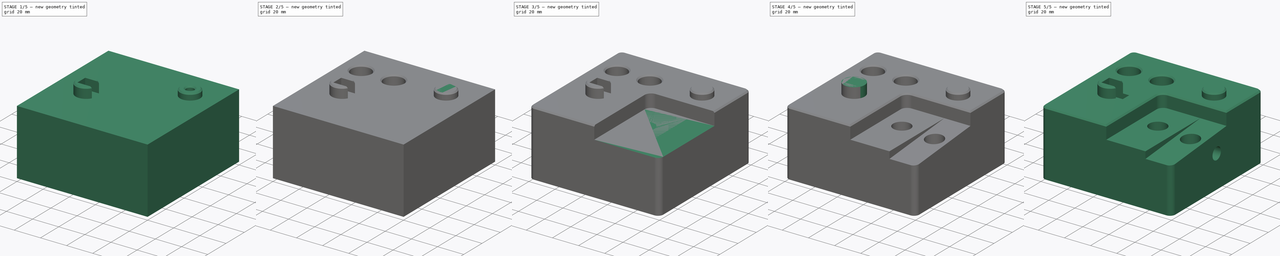
[diagram: build sequence overview — one tinted view per stage of 5, left to right]
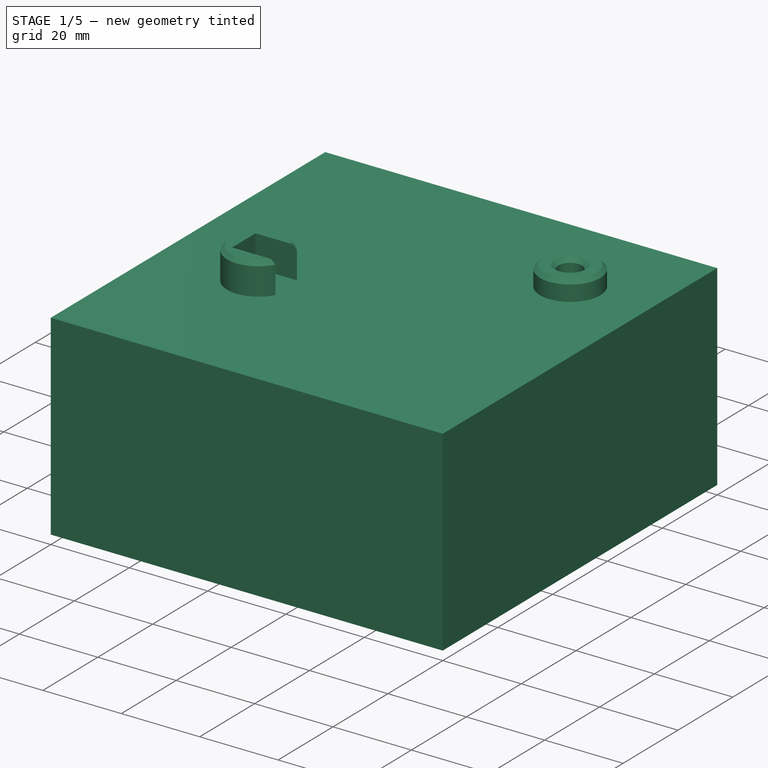
[diagram: stage 1 of 5 — iso view after this stage's code; geometry added in this stage tinted green]
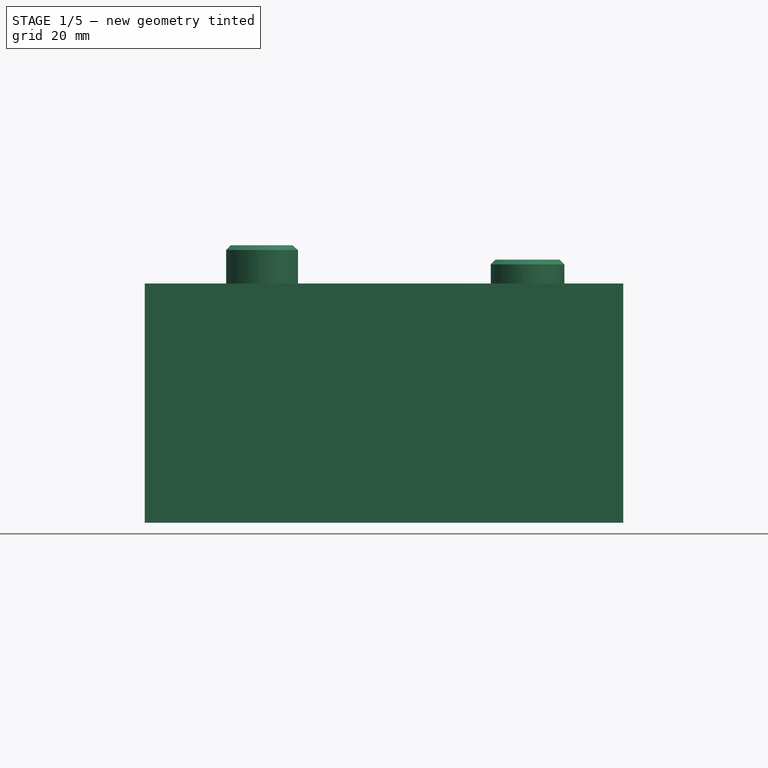
[diagram: stage 1 of 5 — front view after this stage's code; geometry added in this stage tinted green]
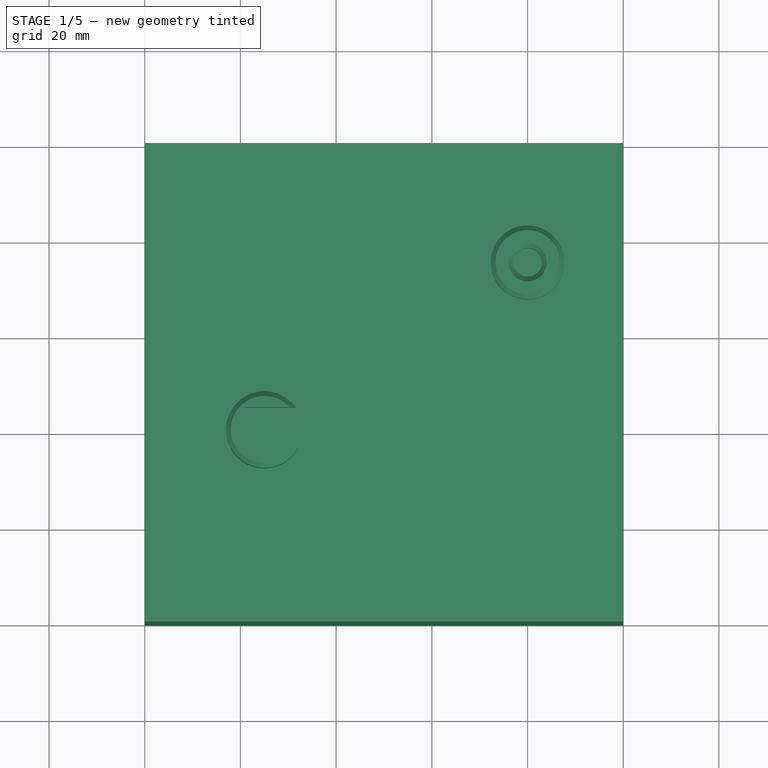
[diagram: stage 1 of 5 — top view after this stage's code; geometry added in this stage tinted green]
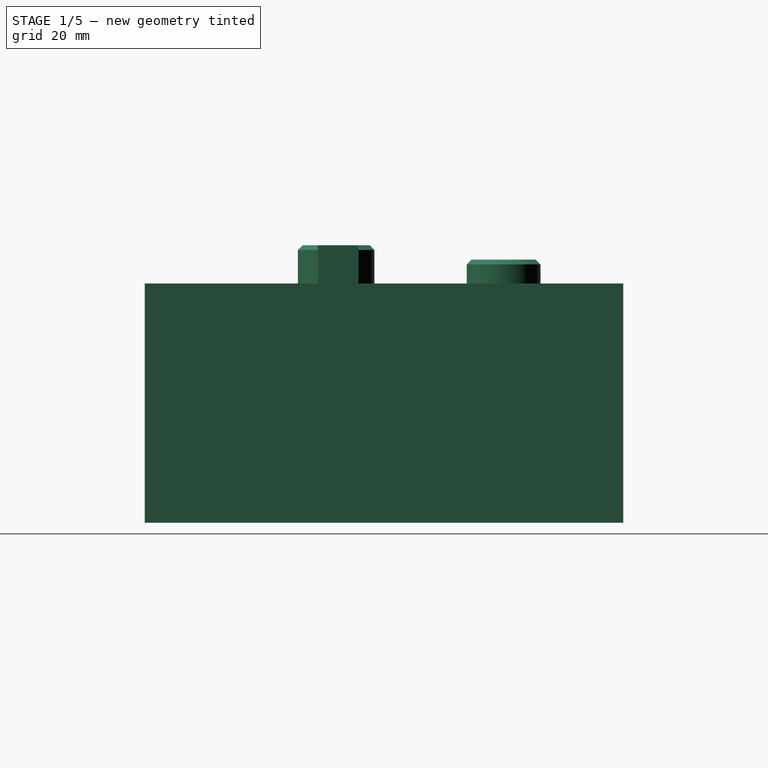
[diagram: stage 1 of 5 — right view after this stage's code; geometry added in this stage tinted green]
FCSTD DOCUMENT  (FreeCAD 0.15R4241 (Git))
Label: hole_puzzle
License: CC-BY 3.0
LicenseURL: http://creativecommons.org/licenses/by/3.0/
objects: Part::Feature×25, Sketcher::SketchObject×12, PartDesign::Pocket×9, Part::Part2DObjectPython×8, PartDesign::Chamfer×6, PartDesign::Pad×3, PartDesign::Fillet×2
note: 77 computed .brp shape members not serialized (recipe doc carries the construction recipe); baked Part::Feature solids carry a one-line shape summary decoded from their .brp

FEATURE [Part::Feature] Part__Feature  label="D688-3d-end-user-b1"
  Placement = pos=(-564.303,-2067.46,-114.398) rot=(0,0,-1;1.5708rad)
  shape: bbox 19.05 x 17.15 x 19.05 mm, 18 faces (baked)
FEATURE [Part::Feature] Part__Feature001  label="D688-3d-end-user-b002"
  Placement = pos=(-559.833,-2111.34,-116.713) rot=(0,0,-1;1.5708rad)
  shape: bbox 151.6 x 18.41 x 44.07 mm, 44 faces (baked)
FEATURE [Part::Feature] Part__Feature002  label="D688-3d-end-user-b003"
  Placement = pos=(-140.316,1234.81,479.252) rot=(0.68478,0.643734,-0.341588;3.84535rad)
  shape: bbox 233.4 x 43.26 x 44.63 mm, 12 faces (baked)
FEATURE [Part::Feature] Part__Feature003  label="D688-3d-end-user-b004"
  Placement = pos=(-559.48,-1987.46,-116.713) rot=(0,0,-1;1.5708rad)
  shape: bbox 151.6 x 18.42 x 44.07 mm, 36 faces (baked)
FEATURE [Part::Feature] Part__Feature004  label="D688-3d-end-user-b005"
  Placement = pos=(-559.428,-2111.34,-116.713) rot=(0,0,-1;1.5708rad)
  shape: bbox 228.5 x 435.9 x 73.14 mm, 393 faces (baked)
FEATURE [Part::Feature] Part__Feature005  label="D688-3d-end-user-b006"
  Placement = pos=(-559.833,-2111.34,-116.713) rot=(0,0,-1;1.5708rad)
  shape: bbox 19.05 x 17.65 x 19.05 mm, 18 faces (baked)
FEATURE [Part::Feature] Part__Feature006  label="D688-3d-end-user-b007"
  Placement = pos=(-559.466,-1987.46,-116.713) rot=(0,0,-1;1.5708rad)
  shape: bbox 151.6 x 121.9 x 47.5 mm, 17 faces (baked)
FEATURE [Part::Feature] Part__Feature007  label="D688-3d-end-user-b008"
  Placement = pos=(-541.738,-2111.11,76.3248) rot=(-0.150552,0.150552,-0.977071;1.59399rad)
  shape: bbox 29.71 x 1.078 x 29.1 mm, 25 faces (baked)
FEATURE [Part::Feature] Part__Feature008  label="D688-3d-end-user-b009"
  Placement = pos=(-598.443,-2111.77,-114.678) rot=(0,0,-1;1.5708rad)
  shape: bbox 10.33 x 4.6 x 4.015 mm, 48 faces (baked)
FEATURE [Part::Feature] Part__Feature009  label="D688-3d-end-user-b010"
  Placement = pos=(-559.437,-2111.34,-116.713) rot=(0,0,-1;1.5708rad)
  shape: bbox 152.4 x 50.29 x 44.07 mm, 48 faces (baked)
FEATURE [Part::Feature] Part__Feature010  label="D688-3d-end-user-b011"
  Placement = pos=(-559.491,-2078.11,-116.713) rot=(0,0,-1;1.5708rad)
  shape: bbox 57.15 x 304.8 x 0.381 mm, 6 faces (baked)
FEATURE [Part::Feature] Part__Feature011  label="D688-3d-end-user-b012"
  Placement = pos=(-499.933,-2111.34,-348.852) rot=(0.185014,-0.185014,-0.965163;1.60625rad)
  shape: bbox 39.42 x 2.362 x 39.42 mm, 6 faces (baked)
FEATURE [Part::Feature] Part__Feature012  label="D688-3d-end-user-b013"
  Placement = pos=(-598.443,-2111.77,-116.713) rot=(0,0,-1;1.5708rad)
  shape: bbox 4.572 x 4.572 x 5.588 mm, 24 faces (baked)
FEATURE [Part::Feature] Part__Feature013  label="D688-3d-end-user-b014"
  Placement = pos=(-559.833,-2111.34,-116.713) rot=(0,0,-1;1.5708rad)
  shape: bbox 19.05 x 17.65 x 19.05 mm, 18 faces (baked)
FEATURE [Part::Feature] Part__Feature014  label="D688-3d-end-user-b015"
  Placement = pos=(-564.443,-2067.46,-114.678) rot=(0,0,-1;1.5708rad)
  shape: bbox 19.05 x 17.65 x 19.05 mm, 18 faces (baked)
FEATURE [Part::Feature] Part__Feature015  label="D688-3d-end-user-b016"
  Placement = pos=(-598.443,-2111.77,-116.713) rot=(0,0,-1;1.5708rad)
  shape: bbox 12.73 x 21.06 x 8.426 mm, 85 faces (baked)
FEATURE [Part::Feature] Part__Feature016  label="D688-3d-end-user-b017"
  Placement = pos=(320.765,-2047.12,509.829) rot=(0.647109,-0.647109,0.403113;3.90797rad)
  shape: bbox 44.4 x 69.85 x 46.03 mm, 32 faces (baked)
FEATURE [Part::Feature] Part__Feature017  label="D688-3d-end-user-b018"
  Placement = pos=(320.748,-2047.12,510.082) rot=(0.647109,-0.647109,0.403113;3.90797rad)
  shape: bbox 13.95 x 11.1 x 44.99 mm, 8 faces (baked)
FEATURE [Part::Feature] Part__Feature018  label="D688-3d-end-user-b019"
  Placement = pos=(-559.428,-2108.75,-116.714) rot=(1e-06,-1e-06,-1;1.5708rad)
  shape: bbox 25.32 x 49.25 x 25.32 mm, 31 faces (baked)
FEATURE [Part::Feature] Part__Feature019  label="Pocket009"
  Placement = pos=(49.9998,-49.9999,40) rot=(0,0,1;0rad)
  shape: bbox 100 x 100 x 112 mm, 15 faces (baked)
FEATURE [Sketcher::SketchObject] Sketch
  Placement = pos=(0,0,-10) rot=(0,0,1;0rad)
  sketch-geometry (4):
    g0: LineSegment StartX=0 StartY=0 StartZ=0 EndX=100 EndY=0 EndZ=0
    g1: LineSegment StartX=100 StartY=0 StartZ=0 EndX=100 EndY=-100 EndZ=0
    g2: LineSegment StartX=100 StartY=-100 StartZ=0 EndX=0 EndY=-100 EndZ=0
    g3: LineSegment StartX=0 StartY=-100 StartZ=0 EndX=0 EndY=0 EndZ=0
  constraints (11):
    c: Coincident(g0,g1)
    c: Coincident(g1,g2)
    c: Coincident(g2,g3)
    c: Coincident(g3,g0)
    c: Horizontal(g0)
    c: Horizontal(g2)
    c: Vertical(g1)
    c: Vertical(g3)
    c: Coincident(g0,g-1)
    c: DistanceY(g1) = -100
    c: DistanceX(g0) = 100
FEATURE [PartDesign::Pad] Pad
  Length = 50
  Length2 = 100
  Placement = pos=(0,0,-10) rot=(0,0,1;0rad)
  Sketch = -> Sketch
  Type = 0
FEATURE [Part::Part2DObjectPython] Line  # Draft 2D object (typed FeaturePython)
  ChamferSize = 0
  Closed = false
  End = (26.0332,-61.2782,-10)
  FilletRadius = 0
  Points = (2) [(26.0332,-61.2782,7),(26.0332,-61.2782,-10)]
  Start = (26.0332,-61.2782,7)
FEATURE [Part::Part2DObjectPython] Shape2DView  # Draft 2D object (typed FeaturePython)
  Base = -> Pocket006
  FaceNumbers = [1]
  HiddenLines = false
  Placement = pos=(0,0,0) rot=(0,1,0;3.14159rad)
  Projection = (0,0,-1)
  ProjectionMode = 0
FEATURE [Part::Feature] Part__Feature020  label="Pocket014"
  shape: bbox 100 x 100 x 58 mm, 47 faces (baked)
FEATURE [Sketcher::SketchObject] Sketch010
  Placement = pos=(0,0,40) rot=(0,0,1;0rad)
  Support = -> Part__Feature020 [Face2]
  sketch-geometry (1):
    g0: Circle CenterX=59.3057 CenterY=-22.8768 CenterZ=0 NormalX=0 NormalY=0 NormalZ=1 Radius=5.12485
  constraints (1):
    c: Radius(g0) = 5.12485
FEATURE [PartDesign::Pocket] Pocket007  label="Pocket015"
  Length = 5
  Sketch = -> Sketch010
  Type = 0
FEATURE [Sketcher::SketchObject] Sketch011
  ExternalGeometry = -> [Pocket007]
  Placement = pos=(0,0,45) rot=(0,0,1;0rad)
  Support = -> Pocket007 [Face48]
  sketch-geometry (1):
    g0: Circle CenterX=80 CenterY=-25 CenterZ=0 NormalX=0 NormalY=0 NormalZ=1 Radius=3
  constraints (2):
    c: Coincident(g0,g-3)
    c: Radius(g0) = 3
FEATURE [PartDesign::Pocket] Pocket008  label="Pocket016"
  Length = 5
  Sketch = -> Sketch011
  Type = 1
FEATURE [PartDesign::Chamfer] Chamfer005
  Base = -> Pocket008 [Edge118]
  Size = 1
FEATURE [Part::Part2DObjectPython] Line001  # Draft 2D object (typed FeaturePython)
  ChamferSize = 0
  Closed = false
  End = (80,-25,-10)
  FilletRadius = 0
  Points = (2) [(80,-25,48),(80,-25,-10)]
  Start = (80,-25,48)
FEATURE [Part::Part2DObjectPython] Line002  # Draft 2D object (typed FeaturePython)
  ChamferSize = 0
  Closed = false
  End = (65,-65,-10)
  FilletRadius = 0
  Points = (2) [(65,-65,48),(65,-65,-10)]
  Start = (65,-65,48)
FEATURE [Part::Part2DObjectPython] Line003  # Draft 2D object (typed FeaturePython)
  ChamferSize = 0
  Closed = false
  End = (90,-65,-10)
  FilletRadius = 0
  Points = (2) [(90,-65,48),(90,-65,-10)]
  Start = (90,-65,48)
FEATURE [Part::Part2DObjectPython] Line004  # Draft 2D object (typed FeaturePython)
  ChamferSize = 0
  Closed = false
  End = (15,-25.0116,-10)
  FilletRadius = 0
  Points = (2) [(15,-25.0116,48),(15,-25.0116,-10)]
  Start = (15,-25.0116,48)
FEATURE [Part::Part2DObjectPython] Line005  # Draft 2D object (typed FeaturePython)
  ChamferSize = 0
  Closed = false
  End = (40,-25.0116,-10)
  FilletRadius = 0
  Points = (2) [(40,-25.0116,48),(40,-25.0116,-10)]
  Start = (40,-25.0116,48)
FEATURE [Part::Part2DObjectPython] Line006  # Draft 2D object (typed FeaturePython)
  ChamferSize = 0
  Closed = false
  End = (59.3259,-22.8768,35)
  FilletRadius = 0
  Points = (2) [(59.3259,-22.8768,48),(59.3259,-22.8768,35)]
  Start = (59.3259,-22.8768,48)
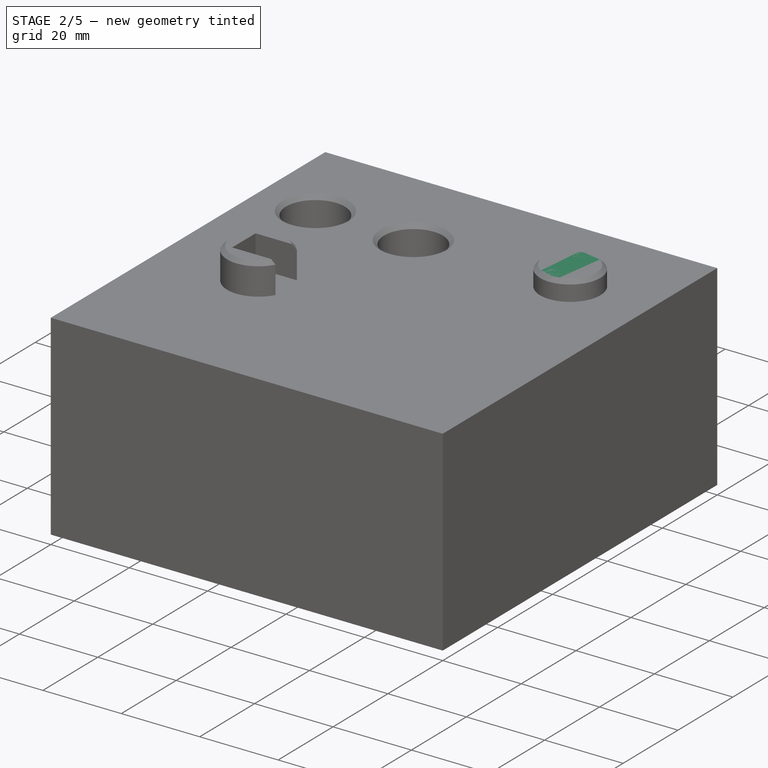
[diagram: stage 2 of 5 — iso view after this stage's code; geometry added in this stage tinted green]
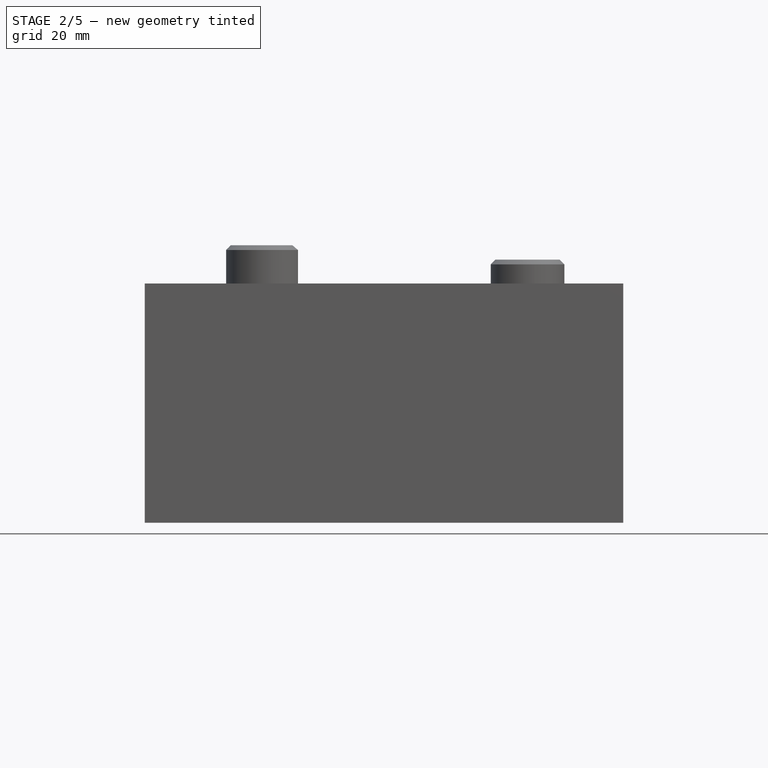
[diagram: stage 2 of 5 — front view after this stage's code; geometry added in this stage tinted green]
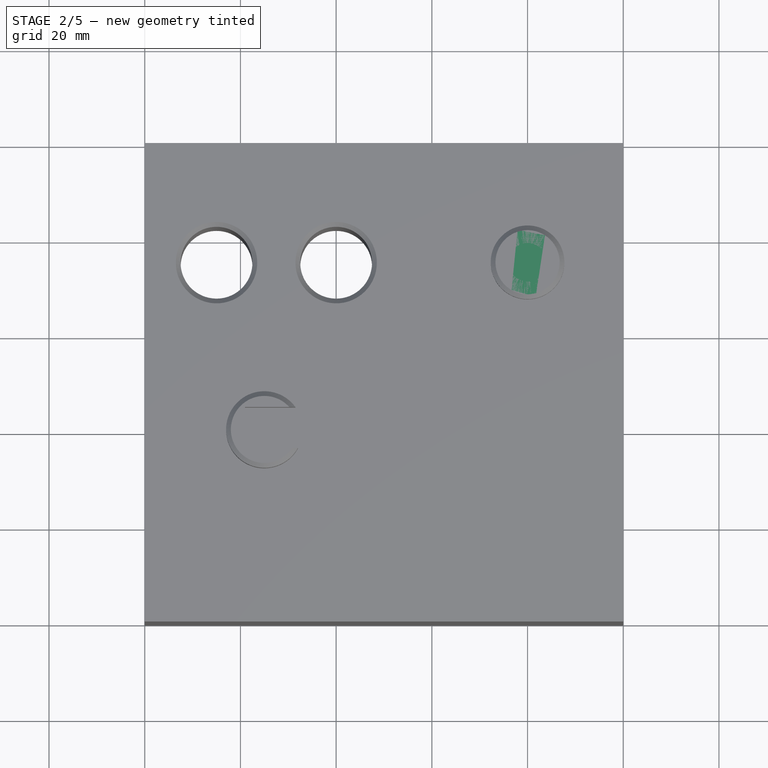
[diagram: stage 2 of 5 — top view after this stage's code; geometry added in this stage tinted green]
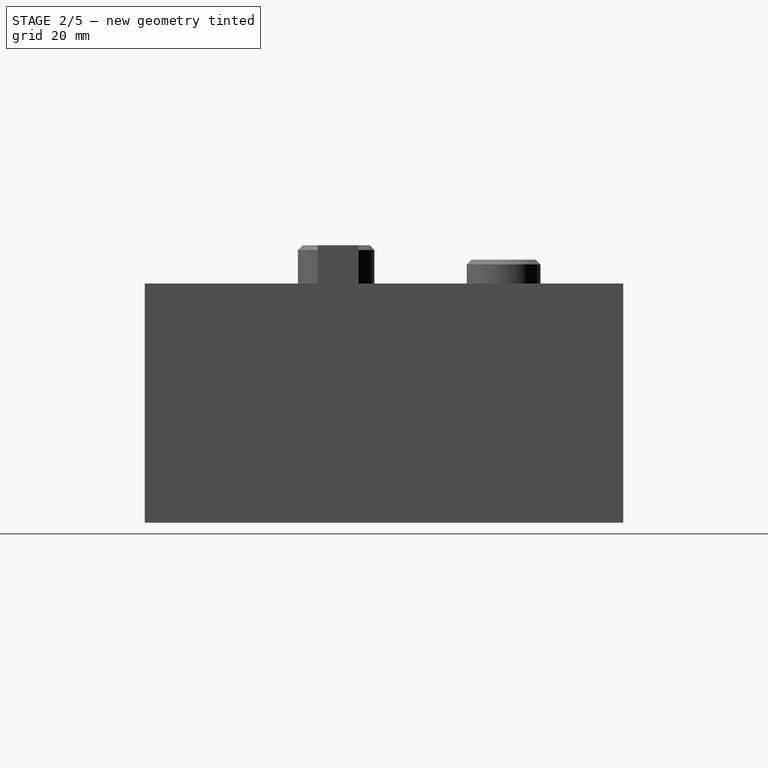
[diagram: stage 2 of 5 — right view after this stage's code; geometry added in this stage tinted green]
FEATURE [Sketcher::SketchObject] Sketch001
  Placement = pos=(0,0,40) rot=(0,0,1;0rad)
  Support = -> Pad [Face6]
  sketch-geometry (2):
    g0: Circle CenterX=15 CenterY=-25 CenterZ=0 NormalX=0 NormalY=0 NormalZ=1 Radius=7.5
    g1: Circle CenterX=40 CenterY=-25 CenterZ=0 NormalX=0 NormalY=0 NormalZ=1 Radius=7.5
  constraints (6):
    c: DistanceX(g0) = 15
    c: DistanceY(g0) = -25
    c: Radius(g0) = 7.5
    c: Equal(g0,g1)
    c: DistanceX(g1,g0) = -25
    c: DistanceY(g-1,g1) = -25
FEATURE [PartDesign::Pocket] Pocket
  Length = 5
  Placement = pos=(0,0,-10) rot=(0,0,1;0rad)
  Sketch = -> Sketch001
  Type = 1
FEATURE [Sketcher::SketchObject] Sketch002
  Placement = pos=(0,0,40) rot=(0,0,1;0rad)
  Support = -> Pocket [Face5]
  sketch-geometry (1):
    g0: Circle CenterX=80 CenterY=-25 CenterZ=0 NormalX=0 NormalY=0 NormalZ=1 Radius=7.7
  constraints (3):
    c: Radius(g0) = 7.7
    c: DistanceX(g0) = 80
    c: DistanceY(g0) = -25
FEATURE [PartDesign::Pad] Pad001
  Length = 5
  Length2 = 100
  Placement = pos=(0,0,-10) rot=(0,0,1;0rad)
  Sketch = -> Sketch002
  Type = 0
FEATURE [Part::Feature] Shape001
  Placement = pos=(0,0,-10) rot=(0,0,1;0rad)
  shape: bbox 100 x 100 x 55 mm, 8 faces (baked)
FEATURE [PartDesign::Chamfer] Chamfer
  Base = -> Pad001 [Edge17,Edge18]
  Placement = pos=(0,0,-10) rot=(0,0,1;0rad)
  Size = 1
FEATURE [PartDesign::Chamfer] Chamfer001
  Base = -> Chamfer [Edge11]
  Placement = pos=(0,0,-10) rot=(0,0,1;0rad)
  Size = 1
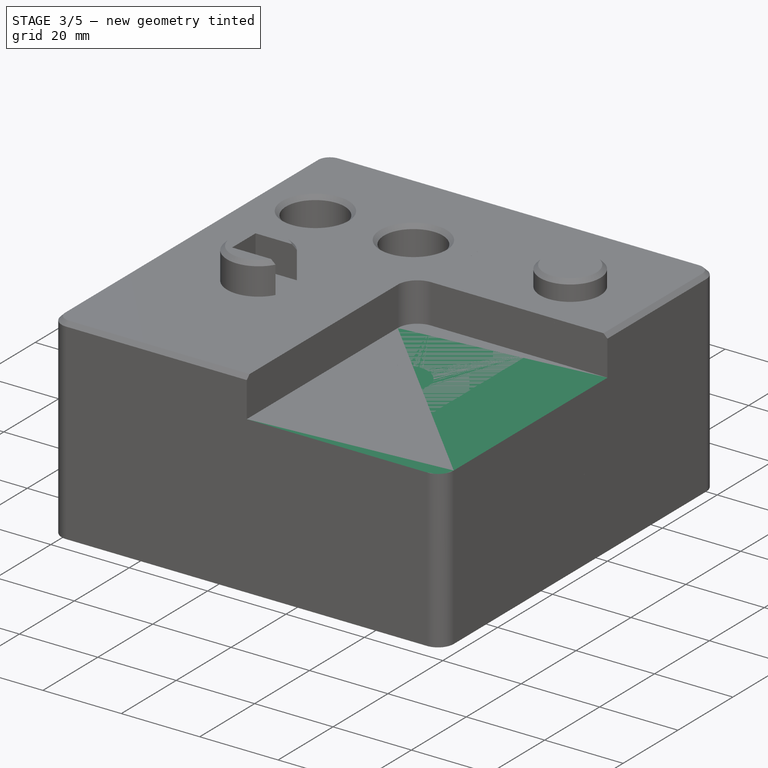
[diagram: stage 3 of 5 — iso view after this stage's code; geometry added in this stage tinted green]
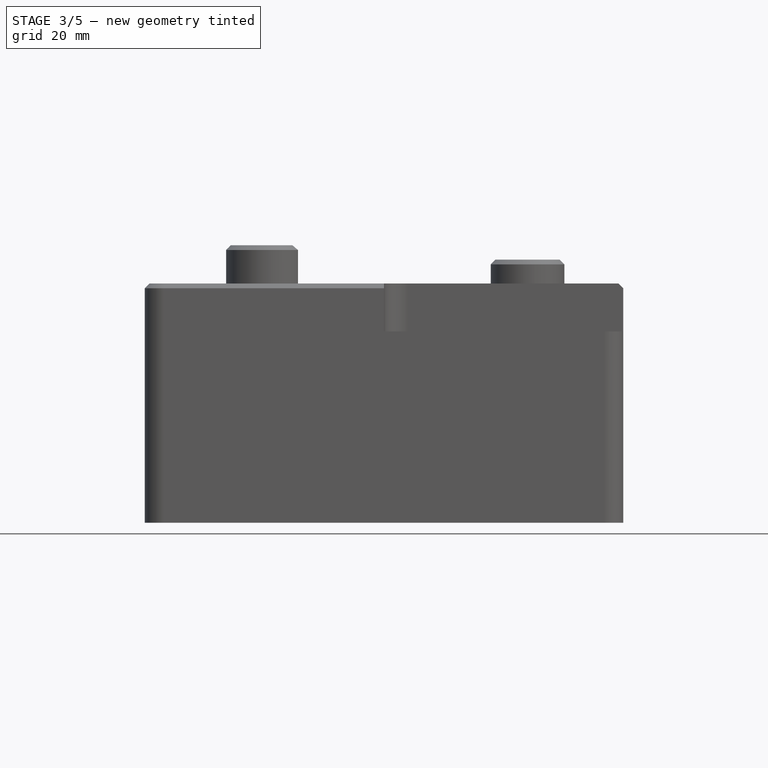
[diagram: stage 3 of 5 — front view after this stage's code; geometry added in this stage tinted green]
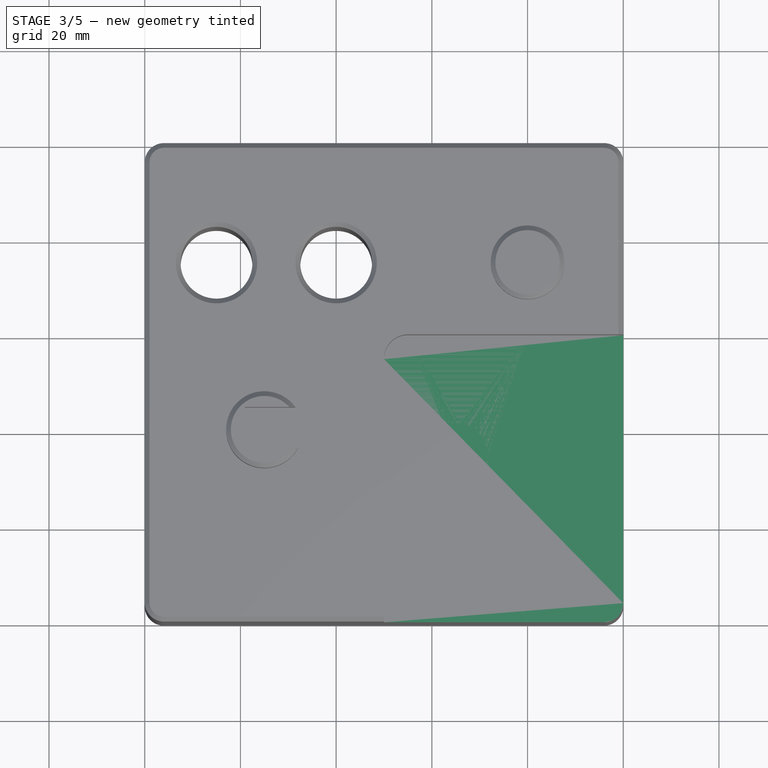
[diagram: stage 3 of 5 — top view after this stage's code; geometry added in this stage tinted green]
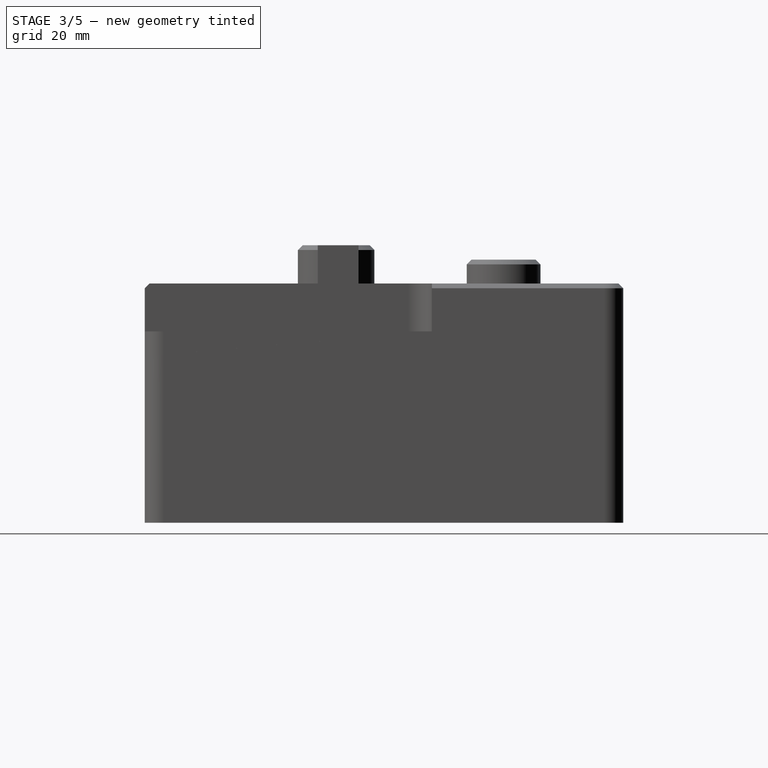
[diagram: stage 3 of 5 — right view after this stage's code; geometry added in this stage tinted green]
FEATURE [PartDesign::Fillet] Fillet
  Base = -> Chamfer001 [Edge19,Edge17,Edge15,Edge14]
  Placement = pos=(0,0,-10) rot=(0,0,1;0rad)
  Radius = 4
FEATURE [PartDesign::Chamfer] Chamfer002
  Base = -> Fillet [Edge5]
  Placement = pos=(0,0,-10) rot=(0,0,1;0rad)
  Size = 1
FEATURE [Sketcher::SketchObject] Sketch003
  ExternalGeometry = -> [Chamfer002]
  Placement = pos=(0,0,40) rot=(0,0,1;0rad)
  Support = -> Chamfer002 [Face1]
  sketch-geometry (4):
    g0: LineSegment StartX=50 StartY=-100 StartZ=0 EndX=100 EndY=-100 EndZ=0
    g1: LineSegment StartX=100 StartY=-100 StartZ=0 EndX=100 EndY=-40 EndZ=0
    g2: LineSegment StartX=100 StartY=-40 StartZ=0 EndX=50 EndY=-40 EndZ=0
    g3: LineSegment StartX=50 StartY=-40 StartZ=0 EndX=50 EndY=-100 EndZ=0
  constraints (12):
    c: Coincident(g0,g1)
    c: Coincident(g1,g2)
    c: Coincident(g2,g3)
    c: Coincident(g3,g0)
    c: Horizontal(g0)
    c: Horizontal(g2)
    c: Vertical(g1)
    c: Vertical(g3)
    c: PointOnObject(g1,g-3)
    c: PointOnObject(g0,g-4)
    c: DistanceX(g2) = -50
    c: DistanceY(g3) = -60
FEATURE [PartDesign::Pocket] Pocket001
  Length = 10
  Placement = pos=(0,0,-10) rot=(0,0,1;0rad)
  Sketch = -> Sketch003
  Type = 0
FEATURE [PartDesign::Fillet] Fillet001
  Base = -> Pocket001 [Edge27]
  Placement = pos=(0,0,-10) rot=(0,0,1;0rad)
  Radius = 5
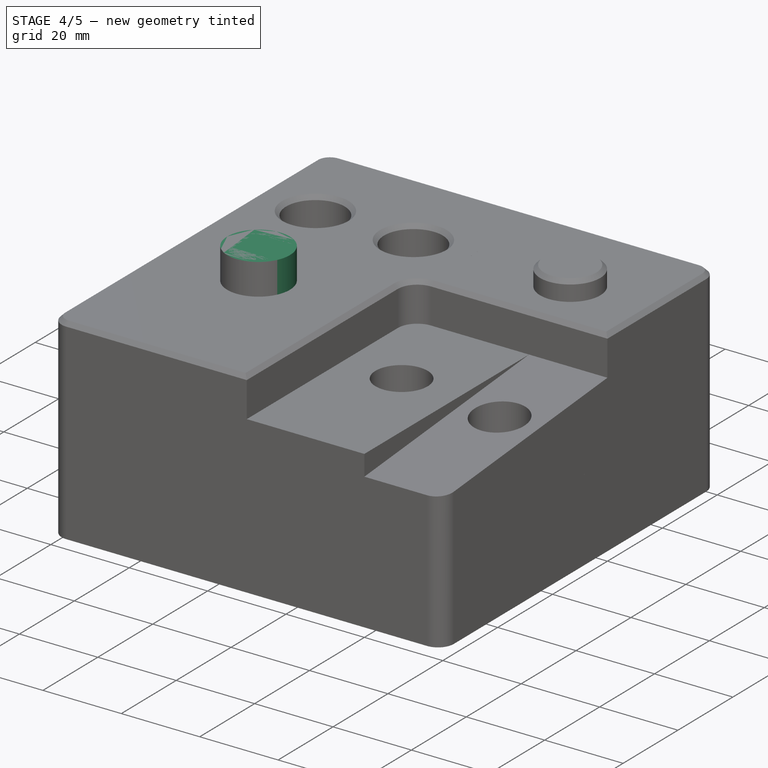
[diagram: stage 4 of 5 — iso view after this stage's code; geometry added in this stage tinted green]
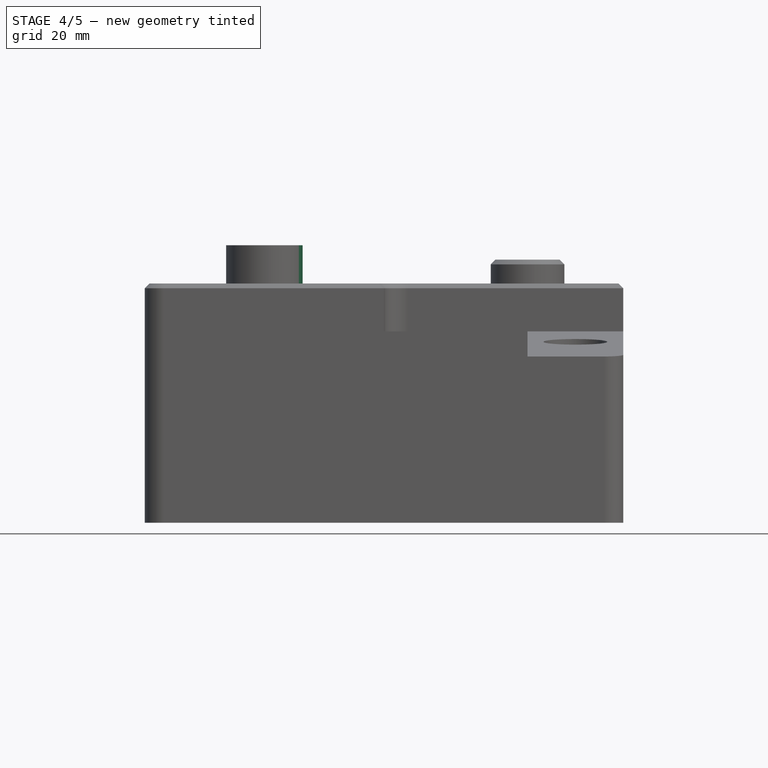
[diagram: stage 4 of 5 — front view after this stage's code; geometry added in this stage tinted green]
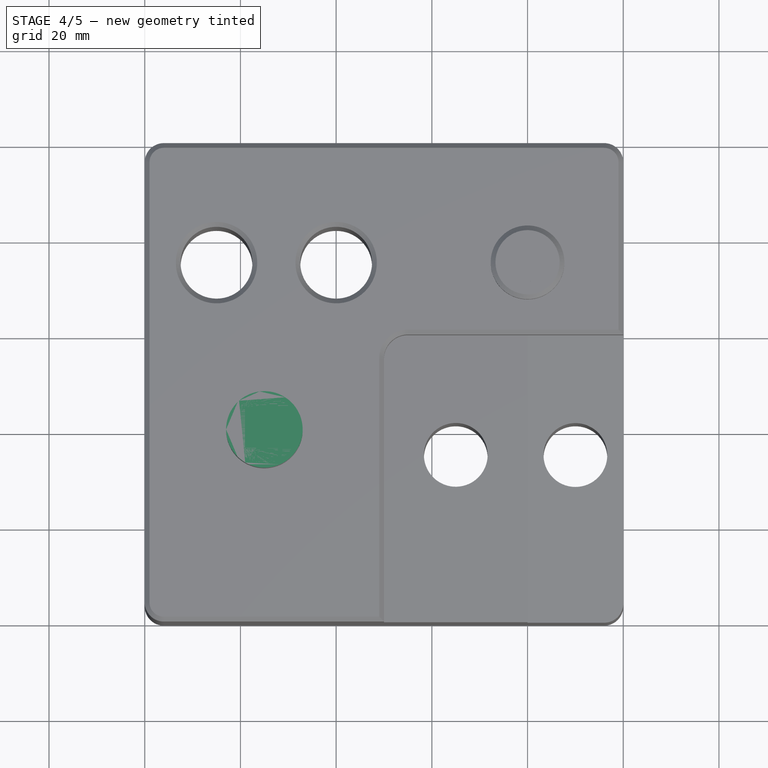
[diagram: stage 4 of 5 — top view after this stage's code; geometry added in this stage tinted green]
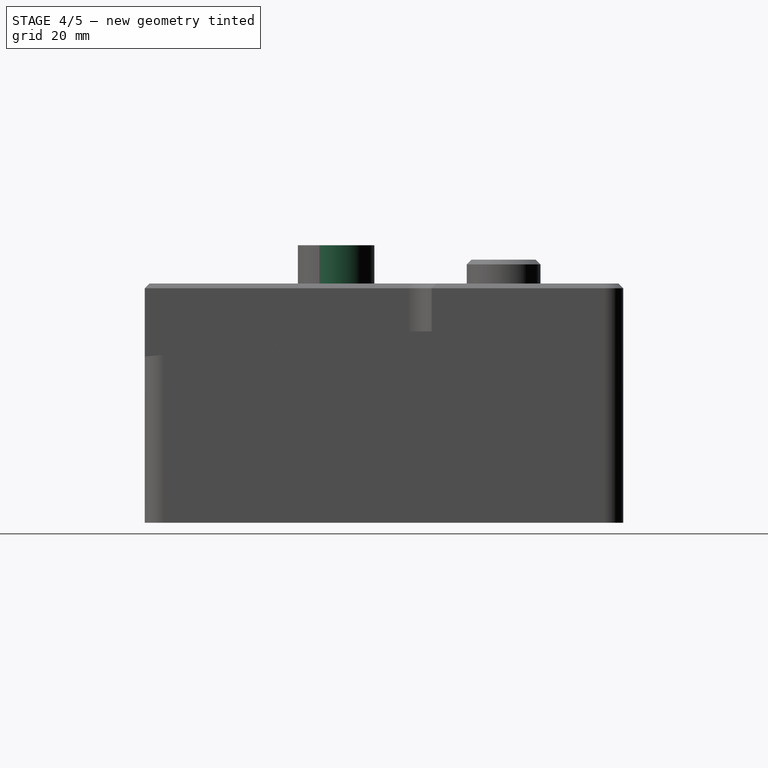
[diagram: stage 4 of 5 — right view after this stage's code; geometry added in this stage tinted green]
FEATURE [PartDesign::Chamfer] Chamfer003
  Base = -> Fillet001 [Edge4]
  Placement = pos=(0,0,-10) rot=(0,0,1;0rad)
  Size = 1
FEATURE [Sketcher::SketchObject] Sketch004
  ExternalGeometry = -> [Chamfer003]
  Placement = pos=(0,0,30) rot=(0,0,1;0rad)
  Support = -> Chamfer003 [Face30]
  sketch-geometry (2):
    g0: Circle CenterX=65 CenterY=-65 CenterZ=0 NormalX=0 NormalY=0 NormalZ=1 Radius=6.66
    g1: Circle CenterX=90 CenterY=-65 CenterZ=0 NormalX=0 NormalY=0 NormalZ=1 Radius=6.66
  constraints (6):
    c: Radius(g0) = 6.66
    c: DistanceY(g0,g-4) = 25
    c: DistanceX(g0,g-3) = -15
    c: Equal(g0,g1)
    c: DistanceY(g1,g-4) = 25
    c: DistanceX(g1,g-3) = -40
FEATURE [PartDesign::Pocket] Pocket002
  Length = 5
  Placement = pos=(0,0,-10) rot=(0,0,1;0rad)
  Sketch = -> Sketch004
  Type = 1
FEATURE [Sketcher::SketchObject] Sketch005
  ExternalGeometry = -> [Pocket002]
  Placement = pos=(100,0,-10) rot=(0.57735,0.57735,0.57735;2.0944rad)
  Support = -> Pocket002 [Face15]
  sketch-geometry (3):
    g0: LineSegment StartX=-40 StartY=40 StartZ=0 EndX=-100 EndY=34.7507 EndZ=0
    g1: LineSegment StartX=-100 StartY=34.7507 StartZ=0 EndX=-100 EndY=40 EndZ=0
    g2: LineSegment StartX=-40 StartY=40 StartZ=0 EndX=-100 EndY=40 EndZ=0
  constraints (8):
    c: Coincident(g0,g-4)
    c: Coincident(g1,g0)
    c: Vertical(g1)
    c: Coincident(g2,g0)
    c: Horizontal(g2)
    c: Angle(g2,g0) = 0.087266
    c: Coincident(g1,g-5)
    c: Coincident(g1,g2)
FEATURE [PartDesign::Pocket] Pocket003  label="Pocket010"
  Length = 20
  Placement = pos=(0,0,-10) rot=(0,0,1;0rad)
  Sketch = -> Sketch005
  Type = 0
FEATURE [Part::Feature] Shape
  shape: bbox 11.98 x 11.97 x 2e-07 mm, 1 faces, 0 solids (baked)
FEATURE [Part::Feature] Shape002
FEATURE [Part::Feature] Shape003
  Placement = pos=(0,0,28.3377) rot=(0,0,1;0rad)
FEATURE [Sketcher::SketchObject] Sketch006
  ExternalGeometry = -> [Pocket003]
  Placement = pos=(0,0,40) rot=(0,0,1;0rad)
  Support = -> Pocket003 [Face1]
  sketch-geometry (1):
    g0: Circle CenterX=25 CenterY=-60 CenterZ=0 NormalX=0 NormalY=0 NormalZ=1 Radius=8
  constraints (3):
    c: Radius(g0) = 8
    c: DistanceY(g0,g-4) = 60
    c: DistanceX(g0,g-3) = -25
FEATURE [PartDesign::Pad] Pad002
  Length = 8
  Length2 = 100
  Placement = pos=(0,0,-10) rot=(0,0,1;0rad)
  Sketch = -> Sketch006
  Type = 0
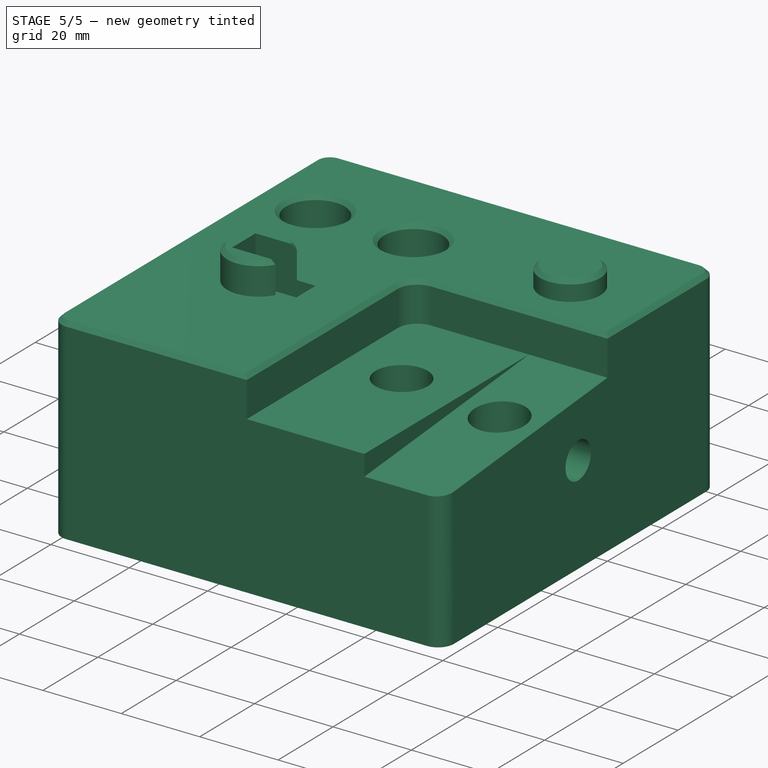
[diagram: stage 5 of 5 — iso view after this stage's code; geometry added in this stage tinted green]
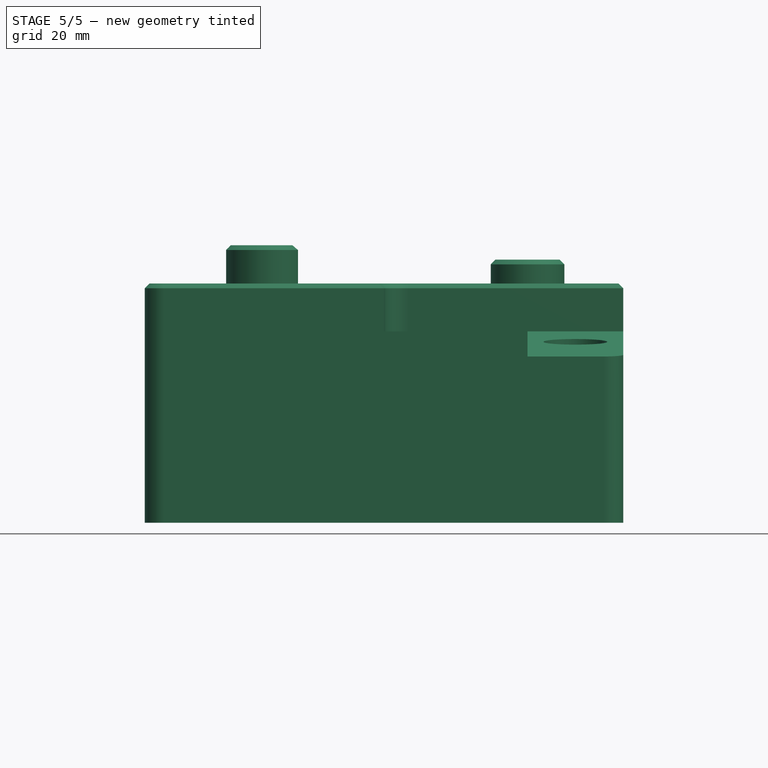
[diagram: stage 5 of 5 — front view after this stage's code; geometry added in this stage tinted green]
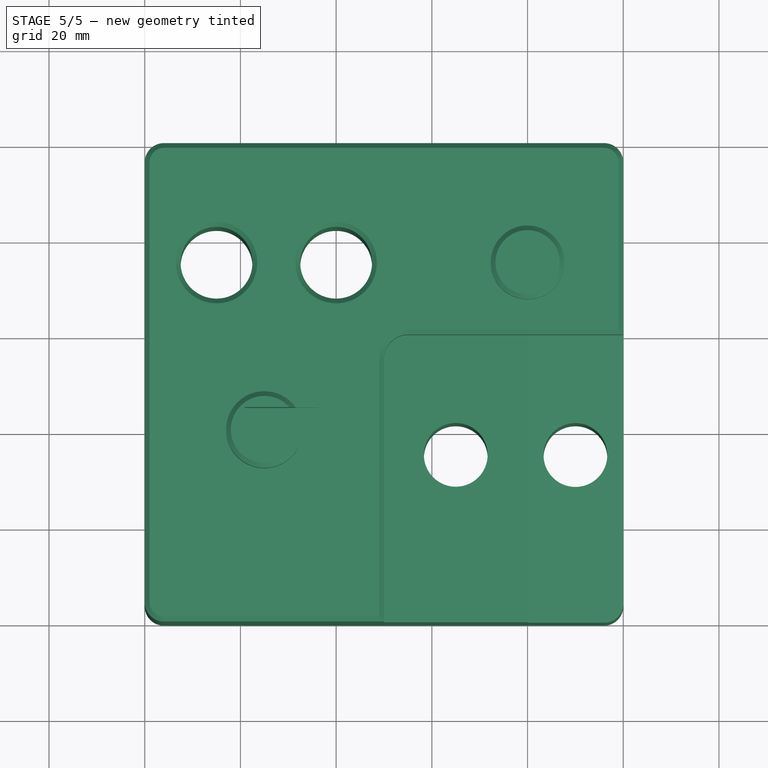
[diagram: stage 5 of 5 — top view after this stage's code; geometry added in this stage tinted green]
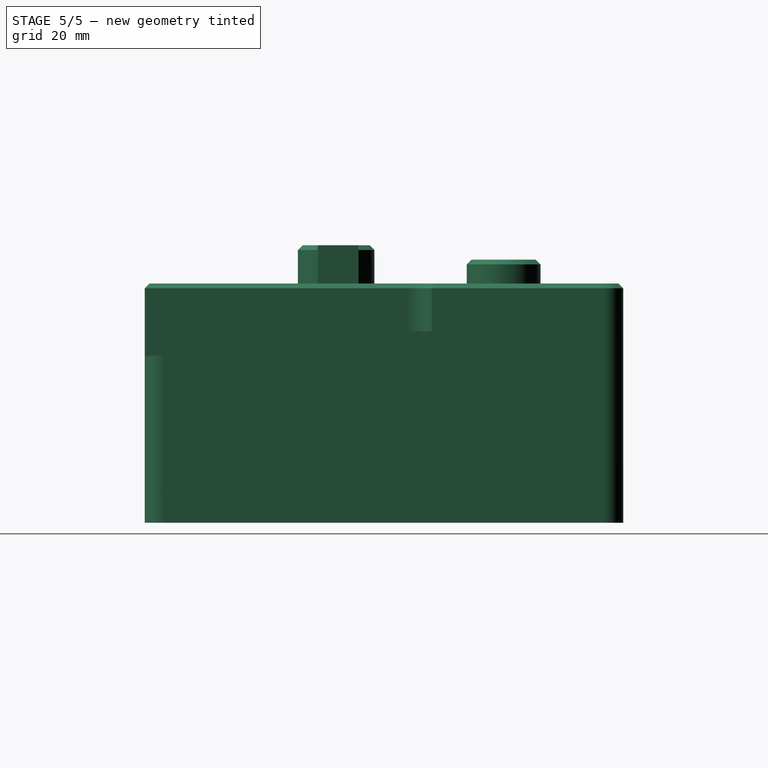
[diagram: stage 5 of 5 — right view after this stage's code; geometry added in this stage tinted green]
FEATURE [PartDesign::Chamfer] Chamfer004
  Base = -> Pad002 [Edge28]
  Placement = pos=(0,0,-10) rot=(0,0,1;0rad)
  Size = 1
FEATURE [Sketcher::SketchObject] Sketch007
  Placement = pos=(100,0,-10) rot=(0.57735,0.57735,0.57735;2.0944rad)
  Support = -> Chamfer004 [Face18]
  sketch-geometry (1):
    g0: Circle CenterX=-50.6486 CenterY=25.0206 CenterZ=0 NormalX=0 NormalY=0 NormalZ=1 Radius=4.63051
FEATURE [PartDesign::Pocket] Pocket004  label="Pocket011"
  Length = 10
  Placement = pos=(0,0,-10) rot=(0,0,1;0rad)
  Sketch = -> Sketch007
  Type = 0
FEATURE [Sketcher::SketchObject] Sketch008
  Placement = pos=(0,0,48) rot=(0,0,1;0rad)
  Support = -> Pocket004 [Face4]
  sketch-geometry (4):
    g0: LineSegment StartX=20.9494 StartY=-63.8356 StartZ=0 EndX=36.2792 EndY=-63.8356 EndZ=0
    g1: LineSegment StartX=36.2792 StartY=-63.8356 StartZ=0 EndX=36.2792 EndY=-55.3173 EndZ=0
    g2: LineSegment StartX=36.2792 StartY=-55.3173 StartZ=0 EndX=20.9494 EndY=-55.3173 EndZ=0
    g3: LineSegment StartX=20.9494 StartY=-55.3173 StartZ=0 EndX=20.9494 EndY=-63.8356 EndZ=0
  constraints (8):
    c: Coincident(g0,g1)
    c: Coincident(g1,g2)
    c: Coincident(g2,g3)
    c: Coincident(g3,g0)
    c: Horizontal(g0)
    c: Horizontal(g2)
    c: Vertical(g1)
    c: Vertical(g3)
FEATURE [PartDesign::Pocket] Pocket005  label="Pocket012"
  Length = 12
  Placement = pos=(0,0,-10) rot=(0,0,1;0rad)
  Sketch = -> Sketch008
  Type = 0
  UpToFace = -> Pocket004 [Face3]
FEATURE [Sketcher::SketchObject] Sketch009
  Placement = pos=(0,0,-10) rot=(1,0,0;3.14159rad)
  Support = -> Pocket005 [Face23]
  sketch-geometry (1):
    g0: Circle CenterX=26.0069 CenterY=61.2782 CenterZ=0 NormalX=0 NormalY=0 NormalZ=1 Radius=14.5657
FEATURE [PartDesign::Pocket] Pocket006  label="Pocket013"
  Length = 17
  Placement = pos=(0,0,-10) rot=(0,0,1;0rad)
  Sketch = -> Sketch009
  Type = 0
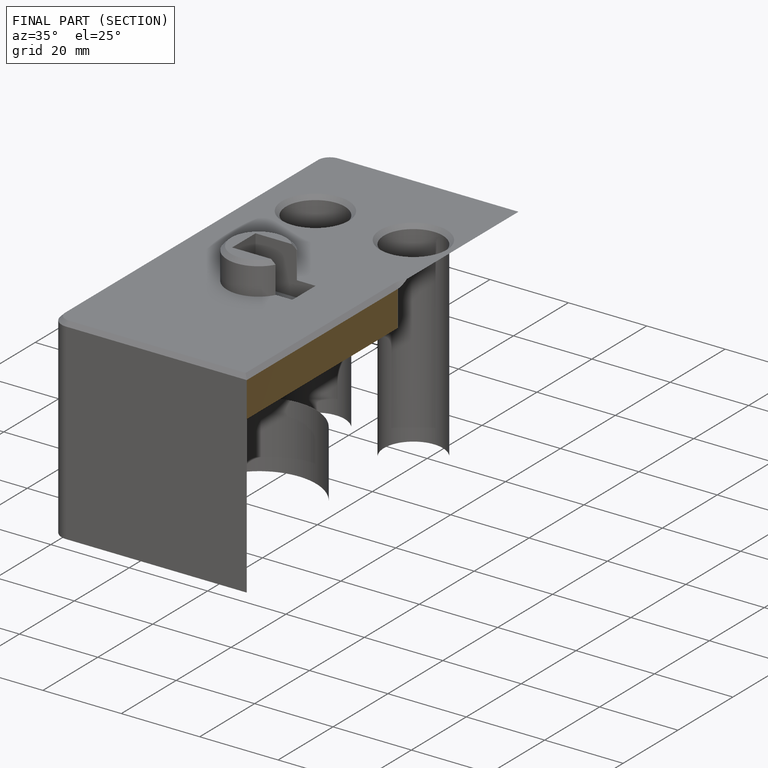
[diagram: finished part — half-section view (interior)]
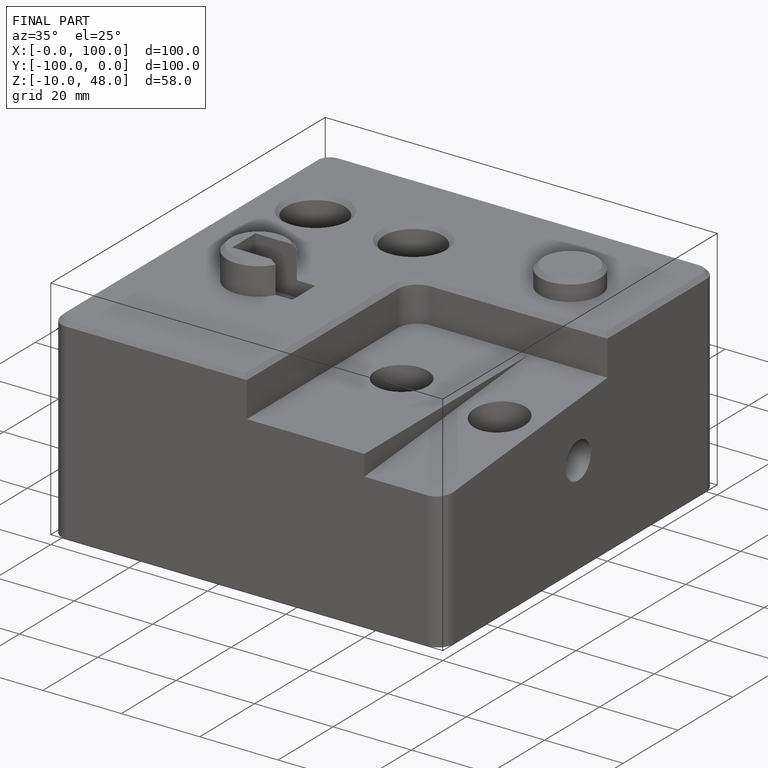
[diagram: finished part — iso view with bounding-box wireframe]
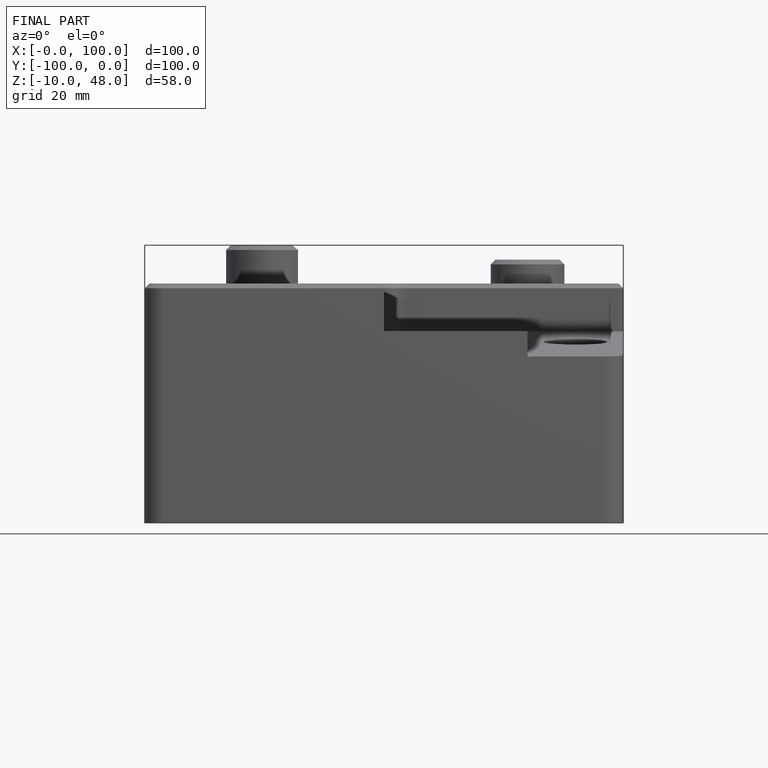
[diagram: finished part — front view with bounding-box wireframe]
